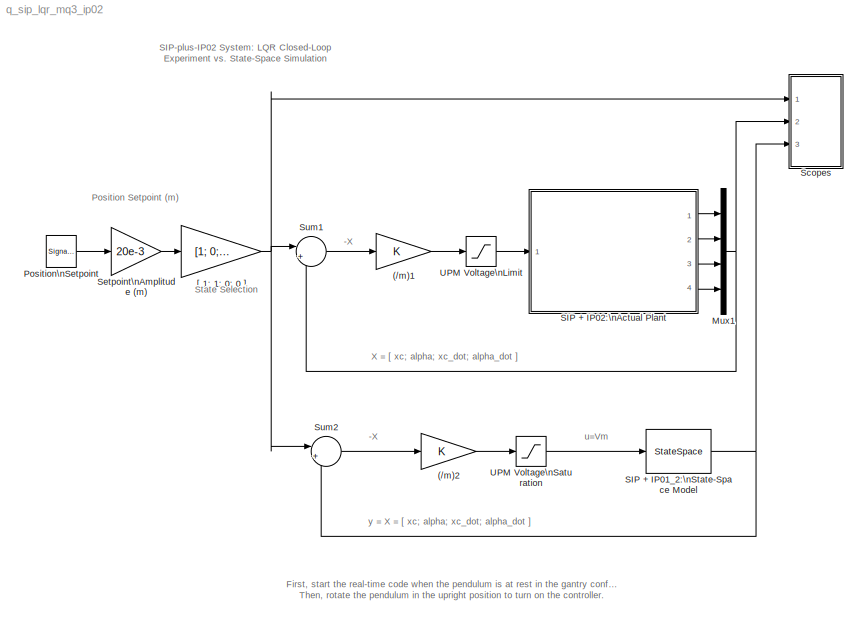
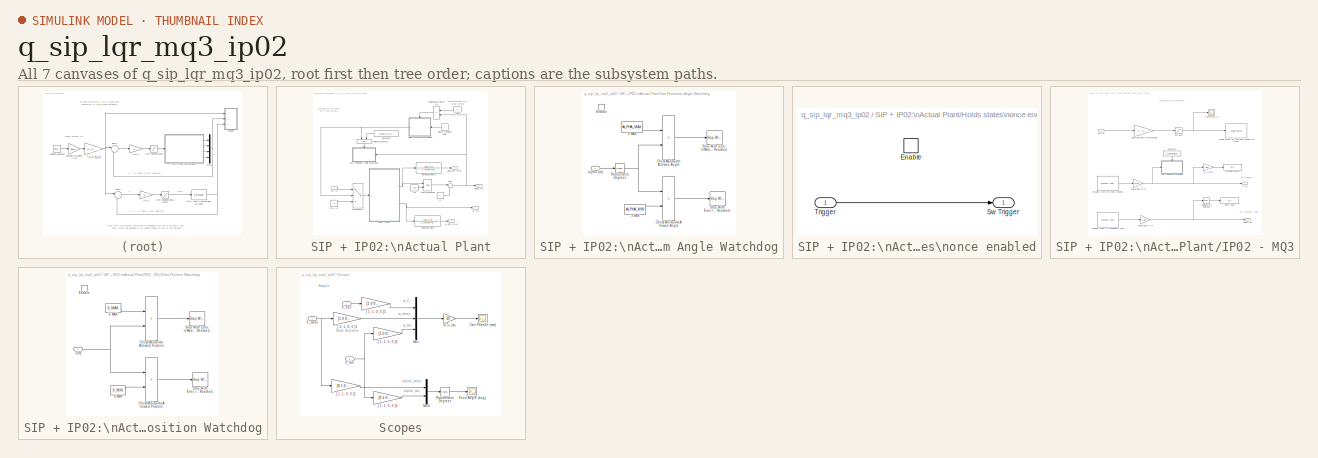
[diagram: thumbnail index - all 7 canvases of the model, root first then tree order]
MODEL q_sip_lqr_mq3_ip02
KIND model
CONFIG AbsTol = 1e-6
CONFIG FixedStep = 0.001
CONFIG MaxStep = auto
CONFIG MinStep = auto
CONFIG RelTol = 1e-3
CONFIG Solver = ode4
CONFIG SolverMode = SingleTasking
CONFIG StartTime = 0.0
CONFIG StopTime = 9999
BLOCK [Gain] (//m)1
  Gain = K
  Multiplication = Matrix(K*u)
  SaturateOnIntegerOverflow = on
BLOCK [Gain] (//m)2
  Gain = K
  Multiplication = Matrix(K*u)
  SaturateOnIntegerOverflow = on
BLOCK [Mux] Mux1
  DisplayOption = bar
  Inputs = 4
  Ports = [4, 1]
BLOCK [SignalGenerator] Position\nSetpoint
  Amplitude = 1
  Frequency = 0.2
  Units = Hertz
  VectorParams1D = on
  WaveForm = square
BLOCK [StateSpace] SIP + IP01_2:\nState-Space Model
  A = A
  AbsoluteTolerance = auto
  B = B
  C = C
  D = D
  Realization = auto
  X0 = [ 0; IC_ALPHA0; 0; 0 ]
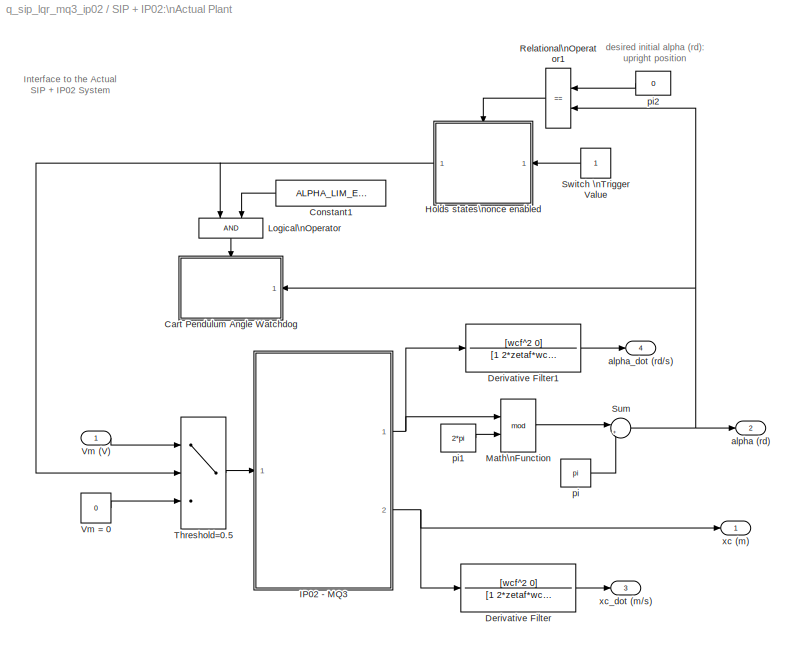
BLOCK [SubSystem] SIP + IP02:\nActual Plant
  Ports = [1, 4]
  RTWFcnNameOpts = Auto
  RTWFileNameOpts = Auto
  RTWSystemCode = Auto
  ShowPortLabels = on
  TreatAsAtomicUnit = off
BLOCK [SubSystem] SIP + IP02:\nActual Plant/Cart Pendulum Angle Watchdog
  Ports = [1, 0, 1]
  RTWFcnNameOpts = Auto
  RTWFileNameOpts = Auto
  RTWSystemCode = Auto
  ShowPortLabels = on
  TreatAsAtomicUnit = on
BLOCK [RelationalOperator] SIP + IP02:\nActual Plant/Cart Pendulum Angle Watchdog/Check Maximum\nAllowed Angle
  Operator = <
BLOCK [RelationalOperator] SIP + IP02:\nActual Plant/Cart Pendulum Angle Watchdog/Check Minimum\nAllowed Angle
  Operator = <
BLOCK [EnablePort] SIP + IP02:\nActual Plant/Cart Pendulum Angle Watchdog/Enable
  Ports = []
  ShowOutputPort = off
  StatesWhenEnabling = held
BLOCK [Reference] SIP + IP02:\nActual Plant/Cart Pendulum Angle Watchdog/Radians\nto Degrees  REF=simulink_extras/Transformations/Radians\nto Degrees
  Ports = [1, 1]
  SourceBlock = simulink_extras/Transformations/Radians\nto Degrees
  SourceType = RadiansToDegrees
BLOCK [Reference] SIP + IP02:\nActual Plant/Cart Pendulum Angle Watchdog/Stop With Error: \nMaximum Angle Reached.  REF=qctools/Extra\nSinks/Stop With Error
  Ports = [1]
  SourceBlock = qctools/Extra\nSinks/Stop With Error
  SourceType = Stop With Error
  errMsg = Maximum Angle Limit Reached.
BLOCK [Reference] SIP + IP02:\nActual Plant/Cart Pendulum Angle Watchdog/Stop With Error:\nMinimum Angle Reached.  REF=qctools/Extra\nSinks/Stop With Error
  Ports = [1]
  SourceBlock = qctools/Extra\nSinks/Stop With Error
  SourceType = Stop With Error
  errMsg = Minimum Angle Limit Reached.
BLOCK [Constant] SIP + IP02:\nActual Plant/Cart Pendulum Angle Watchdog/X MAX
  Value = ALPHA_MAX
  VectorParams1D = on
BLOCK [Constant] SIP + IP02:\nActual Plant/Cart Pendulum Angle Watchdog/X MIN
  Value = ALPHA_MIN
  VectorParams1D = on
BLOCK [Inport] SIP + IP02:\nActual Plant/Cart Pendulum Angle Watchdog/alpha (rd)
  Interpolate = on
  LatchInput = off
  Port = 1
BLOCK [Constant] SIP + IP02:\nActual Plant/Constant1
  Value = ALPHA_LIM_ENABLE
  VectorParams1D = on
BLOCK [TransferFcn] SIP + IP02:\nActual Plant/Derivative Filter
  AbsoluteTolerance = auto
  Denominator = [1 2*zetaf*wcf wcf^2]
  Numerator = [wcf^2 0]
  Realization = auto
BLOCK [TransferFcn] SIP + IP02:\nActual Plant/Derivative Filter1
  AbsoluteTolerance = auto
  Denominator = [1 2*zetaf*wcf wcf^2]
  Numerator = [wcf^2 0]
  Realization = auto
BLOCK [SubSystem] SIP + IP02:\nActual Plant/Holds states\nonce enabled
  Ports = [1, 1, 1]
  RTWFcnNameOpts = Auto
  RTWFileNameOpts = Auto
  RTWSystemCode = Auto
  ShowPortLabels = on
  TreatAsAtomicUnit = on
BLOCK [EnablePort] SIP + IP02:\nActual Plant/Holds states\nonce enabled/Enable
  Ports = []
  ShowOutputPort = off
  StatesWhenEnabling = held
BLOCK [Outport] SIP + IP02:\nActual Plant/Holds states\nonce enabled/Sw Trigger
  InitialOutput = [0]
  OutputWhenDisabled = held
  Port = 1
BLOCK [Inport] SIP + IP02:\nActual Plant/Holds states\nonce enabled/Trigger
  Interpolate = on
  LatchInput = off
  Port = 1
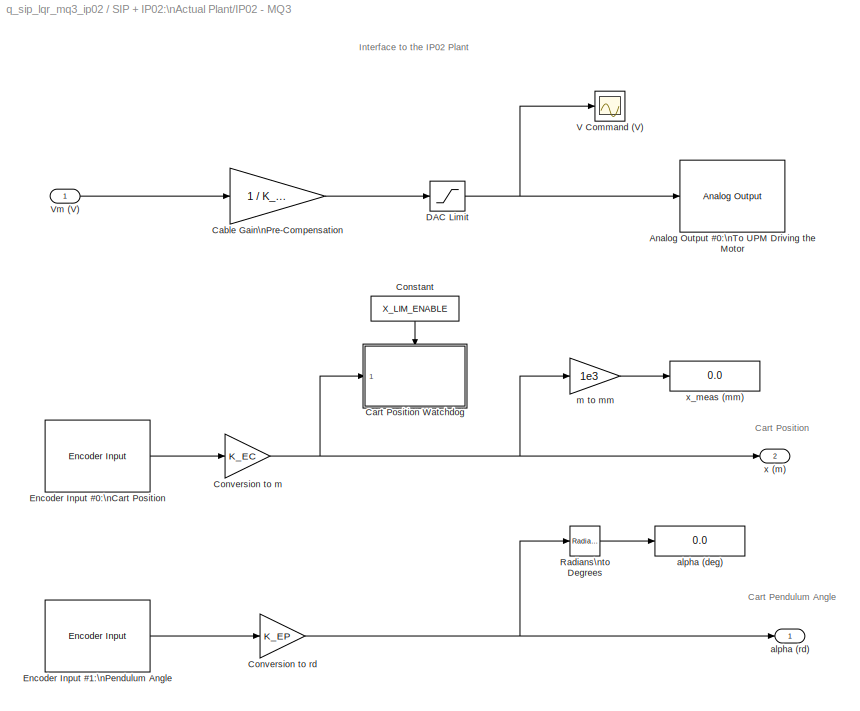
BLOCK [SubSystem] SIP + IP02:\nActual Plant/IP02 - MQ3
  Ports = [1, 2]
  RTWFcnNameOpts = Auto
  RTWFileNameOpts = Auto
  RTWSystemCode = Auto
  ShowPortLabels = on
  TreatAsAtomicUnit = off
BLOCK [Reference] SIP + IP02:\nActual Plant/IP02 - MQ3/Analog Output #0:\nTo UPM Driving the Motor  REF=qctools/Quanser Consulting\nMQ3 Series/Analog Output
  Ports = [1]
  SourceBlock = qctools/Quanser Consulting\nMQ3 Series/Analog Output
  SourceType = Analog Output Module
  baseAddr = 0x320
  channels = 0
  finalOutputs = 0
  initialOutputs = 0
  sampleTime = -1
  simulationOutput = off
BLOCK [Gain] SIP + IP02:\nActual Plant/IP02 - MQ3/Cable Gain\nPre-Compensation
  Gain = 1 / K_CABLE
  Multiplication = Element-wise(K.*u)
  SaturateOnIntegerOverflow = on
BLOCK [SubSystem] SIP + IP02:\nActual Plant/IP02 - MQ3/Cart Position Watchdog
  Ports = [1, 0, 1]
  RTWFcnNameOpts = Auto
  RTWFileNameOpts = Auto
  RTWSystemCode = Auto
  ShowPortLabels = on
  TreatAsAtomicUnit = on
BLOCK [RelationalOperator] SIP + IP02:\nActual Plant/IP02 - MQ3/Cart Position Watchdog/Check Maximum\nAllowed Position
  Operator = <
BLOCK [RelationalOperator] SIP + IP02:\nActual Plant/IP02 - MQ3/Cart Position Watchdog/Check Minimum\nAllowed Position
  Operator = <
BLOCK [EnablePort] SIP + IP02:\nActual Plant/IP02 - MQ3/Cart Position Watchdog/Enable
  Ports = []
  ShowOutputPort = off
  StatesWhenEnabling = held
BLOCK [Reference] SIP + IP02:\nActual Plant/IP02 - MQ3/Cart Position Watchdog/Stop With Error: \nMaximum Limit Reached.  REF=qctools/Extra\nSinks/Stop With Error
  Ports = [1]
  SourceBlock = qctools/Extra\nSinks/Stop With Error
  SourceType = Stop With Error
  errMsg = Maximum Position Limit reached.
BLOCK [Reference] SIP + IP02:\nActual Plant/IP02 - MQ3/Cart Position Watchdog/Stop With Error:\nMinimum Limit Reached.  REF=qctools/Extra\nSinks/Stop With Error
  Ports = [1]
  SourceBlock = qctools/Extra\nSinks/Stop With Error
  SourceType = Stop With Error
  errMsg = Minimum Position Limit reached.
BLOCK [Constant] SIP + IP02:\nActual Plant/IP02 - MQ3/Cart Position Watchdog/X MAX
  Value = X_MAX
  VectorParams1D = on
BLOCK [Constant] SIP + IP02:\nActual Plant/IP02 - MQ3/Cart Position Watchdog/X MIN
  Value = X_MIN
  VectorParams1D = on
BLOCK [Inport] SIP + IP02:\nActual Plant/IP02 - MQ3/Cart Position Watchdog/x (m)
  Interpolate = on
  LatchInput = off
  Port = 1
BLOCK [Constant] SIP + IP02:\nActual Plant/IP02 - MQ3/Constant
  Value = X_LIM_ENABLE
  VectorParams1D = on
BLOCK [Gain] SIP + IP02:\nActual Plant/IP02 - MQ3/Conversion to m
  Gain = K_EC
  Multiplication = Element-wise(K.*u)
  SaturateOnIntegerOverflow = on
BLOCK [Gain] SIP + IP02:\nActual Plant/IP02 - MQ3/Conversion to rd
  Gain = K_EP
  Multiplication = Element-wise(K.*u)
  SaturateOnIntegerOverflow = on
BLOCK [Saturate] SIP + IP02:\nActual Plant/IP02 - MQ3/DAC Limit
  LinearizeAsGain = on
  LowerLimit = - VMAX_DAC
  UpperLimit = VMAX_DAC
BLOCK [Reference] SIP + IP02:\nActual Plant/IP02 - MQ3/Encoder Input #0:\nCart Position  REF=qctools/Quanser Consulting\nMQ3 Series/Encoder Input
  Ports = [0, 1]
  SourceBlock = qctools/Quanser Consulting\nMQ3 Series/Encoder Input
  SourceType = Encoder Input Module
  baseAddr = 0x320
  channels = 0
  initialValues = 0
  sampleTime = simget(bdroot,'FixedStep')
  simulationInput = off
BLOCK [Reference] SIP + IP02:\nActual Plant/IP02 - MQ3/Encoder Input #1:\nPendulum Angle  REF=qctools/Quanser Consulting\nMQ3 Series/Encoder Input
  Ports = [0, 1]
  SourceBlock = qctools/Quanser Consulting\nMQ3 Series/Encoder Input
  SourceType = Encoder Input Module
  baseAddr = 0x320
  channels = 1
  initialValues = 0
  sampleTime = simget(bdroot,'FixedStep')
  simulationInput = off
BLOCK [Reference] SIP + IP02:\nActual Plant/IP02 - MQ3/Radians\nto Degrees  REF=simulink_extras/Transformations/Radians\nto Degrees
  Ports = [1, 1]
  SourceBlock = simulink_extras/Transformations/Radians\nto Degrees
  SourceType = RadiansToDegrees
BLOCK [Scope] SIP + IP02:\nActual Plant/IP02 - MQ3/V Command (V)
  DataFormat = Array
  Decimation = 1
  Floating = off
  Grid = on
  LimitDataPoints = on
  MaxDataPoints = 5000
  NumInputPorts = 1
  Ports = [1]
  SampleInput = off
  SampleTime = 0
  SaveName = ScopeData3
  SaveToWorkspace = off
  TickLabels = on
  TimeRange = 1.000000
  YMax = 1
  YMin = -1
  ZoomMode = on
BLOCK [Inport] SIP + IP02:\nActual Plant/IP02 - MQ3/Vm (V)
  Interpolate = on
  LatchInput = off
  Port = 1
BLOCK [Display] SIP + IP02:\nActual Plant/IP02 - MQ3/alpha (deg)
  Decimation = 1
  Floating = off
  Format = short
  Ports = [1]
  SampleTime = -1
BLOCK [Outport] SIP + IP02:\nActual Plant/IP02 - MQ3/alpha (rd)
  InitialOutput = 0
  OutputWhenDisabled = held
  Port = 1
BLOCK [Gain] SIP + IP02:\nActual Plant/IP02 - MQ3/m to mm
  Gain = 1e3
  Multiplication = Element-wise(K.*u)
  SaturateOnIntegerOverflow = on
BLOCK [Outport] SIP + IP02:\nActual Plant/IP02 - MQ3/x (m)
  InitialOutput = 0
  OutputWhenDisabled = held
  Port = 2
BLOCK [Display] SIP + IP02:\nActual Plant/IP02 - MQ3/x_meas (mm)
  Decimation = 1
  Floating = off
  Format = short
  Ports = [1]
  SampleTime = -1
BLOCK [Logic] SIP + IP02:\nActual Plant/Logical\nOperator
  Inputs = 2
  Operator = AND
  Ports = [2, 1]
BLOCK [Math] SIP + IP02:\nActual Plant/Math\nFunction
  Operator = mod
  OutputSignalType = auto
  Ports = [2, 1]
BLOCK [RelationalOperator] SIP + IP02:\nActual Plant/Relational\nOperator1
  Operator = ==
BLOCK [Sum] SIP + IP02:\nActual Plant/Sum
  IconShape = round
  Inputs = |+-
  Ports = [2, 1]
  SaturateOnIntegerOverflow = on
BLOCK [Constant] SIP + IP02:\nActual Plant/Switch \nTrigger Value
  Value = 1
  VectorParams1D = on
BLOCK [Switch] SIP + IP02:\nActual Plant/Threshold=0.5
  Threshold = 0.5
BLOCK [Inport] SIP + IP02:\nActual Plant/Vm (V)
  Interpolate = on
  LatchInput = off
  Port = 1
BLOCK [Constant] SIP + IP02:\nActual Plant/Vm = 0
  Value = 0
  VectorParams1D = on
BLOCK [Outport] SIP + IP02:\nActual Plant/alpha (rd)
  InitialOutput = 0
  OutputWhenDisabled = held
  Port = 2
BLOCK [Outport] SIP + IP02:\nActual Plant/alpha_dot (rd//s)
  InitialOutput = 0
  OutputWhenDisabled = held
  Port = 4
BLOCK [Constant] SIP + IP02:\nActual Plant/pi
  Value = pi
  VectorParams1D = on
BLOCK [Constant] SIP + IP02:\nActual Plant/pi1
  Value = 2*pi
  VectorParams1D = on
BLOCK [Constant] SIP + IP02:\nActual Plant/pi2
  Value = 0
  VectorParams1D = on
BLOCK [Outport] SIP + IP02:\nActual Plant/xc (m)
  InitialOutput = 0
  OutputWhenDisabled = held
  Port = 1
BLOCK [Outport] SIP + IP02:\nActual Plant/xc_dot (m//s)
  InitialOutput = 0
  OutputWhenDisabled = held
  Port = 3
BLOCK [SubSystem] Scopes
  Ports = [3]
  RTWFcnNameOpts = Auto
  RTWFileNameOpts = Auto
  RTWSystemCode = Auto
  ShowPortLabels = on
  TreatAsAtomicUnit = off
BLOCK [Scope] Scopes/Cart Position (mm)
  DataFormat = Array
  Decimation = 1
  Floating = off
  Grid = on
  LimitDataPoints = on
  MaxDataPoints = 5000
  NumInputPorts = 1
  Ports = [1]
  SampleInput = off
  SampleTime = 0
  SaveName = ScopeData1
  SaveToWorkspace = off
  TickLabels = on
  TimeRange = 1.000000
  YMax = 250
  YMin = -250
  ZoomMode = on
BLOCK [Mux] Scopes/Mux
  DisplayOption = bar
  Inputs = 3
  Ports = [3, 1]
BLOCK [Mux] Scopes/Mux1
  DisplayOption = bar
  Inputs = 2
  Ports = [2, 1]
BLOCK [Scope] Scopes/Pend Angle (deg)
  DataFormat = Array
  Decimation = 1
  Floating = off
  Grid = on
  LimitDataPoints = on
  MaxDataPoints = 5000
  NumInputPorts = 1
  Ports = [1]
  SampleInput = off
  SampleTime = 0
  SaveName = ScopeData
  SaveToWorkspace = off
  TickLabels = on
  TimeRange = 1.000000
  YMax = 250
  YMin = -250
  ZoomMode = on
BLOCK [Reference] Scopes/Radians\nto Degrees  REF=simulink_extras/Transformations/Radians\nto Degrees
  Ports = [1, 1]
  SourceBlock = simulink_extras/Transformations/Radians\nto Degrees
  SourceType = RadiansToDegrees
BLOCK [Inport] Scopes/X_des
  Interpolate = on
  LatchInput = off
  Port = 1
BLOCK [Inport] Scopes/X_meas
  Interpolate = on
  LatchInput = off
  Port = 2
BLOCK [Inport] Scopes/X_sim
  Interpolate = on
  LatchInput = off
  Port = 3
BLOCK [Gain] Scopes/[ 1; 1; 0; 0 ]1
  Gain = [1 0 0 0]
  Multiplication = Matrix(K*u)
  SaturateOnIntegerOverflow = on
BLOCK [Gain] Scopes/[ 1; 1; 0; 0 ]2
  Gain = [0 1 0 0]
  Multiplication = Matrix(K*u)
  SaturateOnIntegerOverflow = on
BLOCK [Gain] Scopes/[ 1; 1; 0; 0 ]3
  Gain = [1 0 0 0]
  Multiplication = Matrix(K*u)
  SaturateOnIntegerOverflow = on
BLOCK [Gain] Scopes/[ 1; 1; 0; 0 ]4
  Gain = [0 1 0 0]
  Multiplication = Matrix(K*u)
  SaturateOnIntegerOverflow = on
BLOCK [Gain] Scopes/[ 1; 1; 0; 0 ]5
  Gain = [1 0 0 0]
  Multiplication = Matrix(K*u)
  SaturateOnIntegerOverflow = on
BLOCK [Gain] Scopes/m To mm
  Gain = 1e3
  Multiplication = Element-wise(K.*u)
  SaturateOnIntegerOverflow = on
BLOCK [Gain] Setpoint\nAmplitude (m)
  Gain = 20e-3
  Multiplication = Element-wise(K.*u)
  SaturateOnIntegerOverflow = on
BLOCK [Sum] Sum1
  IconShape = round
  Inputs = |+-
  Ports = [2, 1]
  SaturateOnIntegerOverflow = on
BLOCK [Sum] Sum2
  IconShape = round
  Inputs = |+-
  Ports = [2, 1]
  SaturateOnIntegerOverflow = on
BLOCK [Saturate] UPM Voltage\nLimit
  LinearizeAsGain = on
  LowerLimit = - VMAX_UPM
  UpperLimit = VMAX_UPM
BLOCK [Saturate] UPM Voltage\nSaturation
  LinearizeAsGain = on
  LowerLimit = - VMAX_UPM
  UpperLimit = VMAX_UPM
BLOCK [Gain] [ 1; 1; 0; 0 ]
  Gain = [1; 0; 0; 0]
  Multiplication = Element-wise(K.*u)
  SaturateOnIntegerOverflow = on
LINE (//m)1:1 -> UPM Voltage\nLimit:1
LINE (//m)2:1 -> UPM Voltage\nSaturation:1
NET Mux1:1 -> Scopes:2, Sum1:2
LINE Position\nSetpoint:1 -> Setpoint\nAmplitude (m):1
NET SIP + IP01_2:\nState-Space Model:1 -> Scopes:3, Sum2:2
LINE SIP + IP02:\nActual Plant/Cart Pendulum Angle Watchdog/Check Maximum\nAllowed Angle:1 -> SIP + IP02:\nActual Plant/Cart Pendulum Angle Watchdog/Stop With Error: \nMaximum Angle Reached.:1
LINE SIP + IP02:\nActual Plant/Cart Pendulum Angle Watchdog/Check Minimum\nAllowed Angle:1 -> SIP + IP02:\nActual Plant/Cart Pendulum Angle Watchdog/Stop With Error:\nMinimum Angle Reached.:1
NET SIP + IP02:\nActual Plant/Cart Pendulum Angle Watchdog/Radians\nto Degrees:1 -> SIP + IP02:\nActual Plant/Cart Pendulum Angle Watchdog/Check Maximum\nAllowed Angle:2, SIP + IP02:\nActual Plant/Cart Pendulum Angle Watchdog/Check Minimum\nAllowed Angle:1
LINE SIP + IP02:\nActual Plant/Cart Pendulum Angle Watchdog/X MAX:1 -> SIP + IP02:\nActual Plant/Cart Pendulum Angle Watchdog/Check Maximum\nAllowed Angle:1
LINE SIP + IP02:\nActual Plant/Cart Pendulum Angle Watchdog/X MIN:1 -> SIP + IP02:\nActual Plant/Cart Pendulum Angle Watchdog/Check Minimum\nAllowed Angle:2
LINE SIP + IP02:\nActual Plant/Cart Pendulum Angle Watchdog/alpha (rd):1 -> SIP + IP02:\nActual Plant/Cart Pendulum Angle Watchdog/Radians\nto Degrees:1
LINE SIP + IP02:\nActual Plant/Constant1:1 -> SIP + IP02:\nActual Plant/Logical\nOperator:2
LINE SIP + IP02:\nActual Plant/Derivative Filter1:1 -> SIP + IP02:\nActual Plant/alpha_dot (rd//s):1
LINE SIP + IP02:\nActual Plant/Derivative Filter:1 -> SIP + IP02:\nActual Plant/xc_dot (m//s):1
LINE SIP + IP02:\nActual Plant/Holds states\nonce enabled/Trigger:1 -> SIP + IP02:\nActual Plant/Holds states\nonce enabled/Sw Trigger:1
NET SIP + IP02:\nActual Plant/Holds states\nonce enabled:1 -> SIP + IP02:\nActual Plant/Logical\nOperator:1, SIP + IP02:\nActual Plant/Threshold=0.5:2
LINE SIP + IP02:\nActual Plant/IP02 - MQ3/Cable Gain\nPre-Compensation:1 -> SIP + IP02:\nActual Plant/IP02 - MQ3/DAC Limit:1
LINE SIP + IP02:\nActual Plant/IP02 - MQ3/Cart Position Watchdog/Check Maximum\nAllowed Position:1 -> SIP + IP02:\nActual Plant/IP02 - MQ3/Cart Position Watchdog/Stop With Error: \nMaximum Limit Reached.:1
LINE SIP + IP02:\nActual Plant/IP02 - MQ3/Cart Position Watchdog/Check Minimum\nAllowed Position:1 -> SIP + IP02:\nActual Plant/IP02 - MQ3/Cart Position Watchdog/Stop With Error:\nMinimum Limit Reached.:1
LINE SIP + IP02:\nActual Plant/IP02 - MQ3/Cart Position Watchdog/X MAX:1 -> SIP + IP02:\nActual Plant/IP02 - MQ3/Cart Position Watchdog/Check Maximum\nAllowed Position:1
LINE SIP + IP02:\nActual Plant/IP02 - MQ3/Cart Position Watchdog/X MIN:1 -> SIP + IP02:\nActual Plant/IP02 - MQ3/Cart Position Watchdog/Check Minimum\nAllowed Position:2
NET SIP + IP02:\nActual Plant/IP02 - MQ3/Cart Position Watchdog/x (m):1 -> SIP + IP02:\nActual Plant/IP02 - MQ3/Cart Position Watchdog/Check Maximum\nAllowed Position:2, SIP + IP02:\nActual Plant/IP02 - MQ3/Cart Position Watchdog/Check Minimum\nAllowed Position:1
LINE SIP + IP02:\nActual Plant/IP02 - MQ3/Constant:1 -> SIP + IP02:\nActual Plant/IP02 - MQ3/Cart Position Watchdog:enable
NET SIP + IP02:\nActual Plant/IP02 - MQ3/Conversion to m:1 -> SIP + IP02:\nActual Plant/IP02 - MQ3/Cart Position Watchdog:1, SIP + IP02:\nActual Plant/IP02 - MQ3/m to mm:1, SIP + IP02:\nActual Plant/IP02 - MQ3/x (m):1
NET SIP + IP02:\nActual Plant/IP02 - MQ3/Conversion to rd:1 -> SIP + IP02:\nActual Plant/IP02 - MQ3/Radians\nto Degrees:1, SIP + IP02:\nActual Plant/IP02 - MQ3/alpha (rd):1
NET SIP + IP02:\nActual Plant/IP02 - MQ3/DAC Limit:1 -> SIP + IP02:\nActual Plant/IP02 - MQ3/Analog Output #0:\nTo UPM Driving the Motor:1, SIP + IP02:\nActual Plant/IP02 - MQ3/V Command (V):1
LINE SIP + IP02:\nActual Plant/IP02 - MQ3/Encoder Input #0:\nCart Position:1 -> SIP + IP02:\nActual Plant/IP02 - MQ3/Conversion to m:1
LINE SIP + IP02:\nActual Plant/IP02 - MQ3/Encoder Input #1:\nPendulum Angle:1 -> SIP + IP02:\nActual Plant/IP02 - MQ3/Conversion to rd:1
LINE SIP + IP02:\nActual Plant/IP02 - MQ3/Radians\nto Degrees:1 -> SIP + IP02:\nActual Plant/IP02 - MQ3/alpha (deg):1
LINE SIP + IP02:\nActual Plant/IP02 - MQ3/Vm (V):1 -> SIP + IP02:\nActual Plant/IP02 - MQ3/Cable Gain\nPre-Compensation:1
LINE SIP + IP02:\nActual Plant/IP02 - MQ3/m to mm:1 -> SIP + IP02:\nActual Plant/IP02 - MQ3/x_meas (mm):1
NET SIP + IP02:\nActual Plant/IP02 - MQ3:1 -> SIP + IP02:\nActual Plant/Derivative Filter1:1, SIP + IP02:\nActual Plant/Math\nFunction:1
NET SIP + IP02:\nActual Plant/IP02 - MQ3:2 -> SIP + IP02:\nActual Plant/Derivative Filter:1, SIP + IP02:\nActual Plant/xc (m):1
LINE SIP + IP02:\nActual Plant/Logical\nOperator:1 -> SIP + IP02:\nActual Plant/Cart Pendulum Angle Watchdog:enable
LINE SIP + IP02:\nActual Plant/Math\nFunction:1 -> SIP + IP02:\nActual Plant/Sum:1
LINE SIP + IP02:\nActual Plant/Relational\nOperator1:1 -> SIP + IP02:\nActual Plant/Holds states\nonce enabled:enable
NET SIP + IP02:\nActual Plant/Sum:1 -> SIP + IP02:\nActual Plant/Cart Pendulum Angle Watchdog:1, SIP + IP02:\nActual Plant/Relational\nOperator1:2, SIP + IP02:\nActual Plant/alpha (rd):1
LINE SIP + IP02:\nActual Plant/Switch \nTrigger Value:1 -> SIP + IP02:\nActual Plant/Holds states\nonce enabled:1
LINE SIP + IP02:\nActual Plant/Threshold=0.5:1 -> SIP + IP02:\nActual Plant/IP02 - MQ3:1
LINE SIP + IP02:\nActual Plant/Vm (V):1 -> SIP + IP02:\nActual Plant/Threshold=0.5:1
LINE SIP + IP02:\nActual Plant/Vm = 0:1 -> SIP + IP02:\nActual Plant/Threshold=0.5:3
LINE SIP + IP02:\nActual Plant/pi1:1 -> SIP + IP02:\nActual Plant/Math\nFunction:2
LINE SIP + IP02:\nActual Plant/pi2:1 -> SIP + IP02:\nActual Plant/Relational\nOperator1:1
LINE SIP + IP02:\nActual Plant/pi:1 -> SIP + IP02:\nActual Plant/Sum:2
LINE SIP + IP02:\nActual Plant:1 -> Mux1:1
LINE SIP + IP02:\nActual Plant:2 -> Mux1:2
LINE SIP + IP02:\nActual Plant:3 -> Mux1:3
LINE SIP + IP02:\nActual Plant:4 -> Mux1:4
LINE Scopes/Mux1:1 -> Scopes/Radians\nto Degrees:1
LINE Scopes/Mux:1 -> Scopes/m To mm:1
LINE Scopes/Radians\nto Degrees:1 -> Scopes/Pend Angle (deg):1
LINE Scopes/X_des:1 -> Scopes/[ 1; 1; 0; 0 ]5:1
NET Scopes/X_meas:1 -> Scopes/[ 1; 1; 0; 0 ]1:1, Scopes/[ 1; 1; 0; 0 ]2:1
NET Scopes/X_sim:1 -> Scopes/[ 1; 1; 0; 0 ]3:1, Scopes/[ 1; 1; 0; 0 ]4:1
LINE Scopes/[ 1; 1; 0; 0 ]1:1 -> Scopes/Mux:2
LINE Scopes/[ 1; 1; 0; 0 ]2:1 -> Scopes/Mux1:1
LINE Scopes/[ 1; 1; 0; 0 ]3:1 -> Scopes/Mux:3
LINE Scopes/[ 1; 1; 0; 0 ]4:1 -> Scopes/Mux1:2
LINE Scopes/[ 1; 1; 0; 0 ]5:1 -> Scopes/Mux:1
LINE Scopes/m To mm:1 -> Scopes/Cart Position (mm):1
LINE Setpoint\nAmplitude (m):1 -> [ 1; 1; 0; 0 ]:1
LINE Sum1:1 -> (//m)1:1
LINE Sum2:1 -> (//m)2:1
LINE UPM Voltage\nLimit:1 -> SIP + IP02:\nActual Plant:1
LINE UPM Voltage\nSaturation:1 -> SIP + IP01_2:\nState-Space Model:1
NET [ 1; 1; 0; 0 ]:1 -> Scopes:1, Sum1:1, Sum2:1
note: NET lines group one-source signal fan-out (src -> all destinations, sorted); 1:1 wires keep LINE
